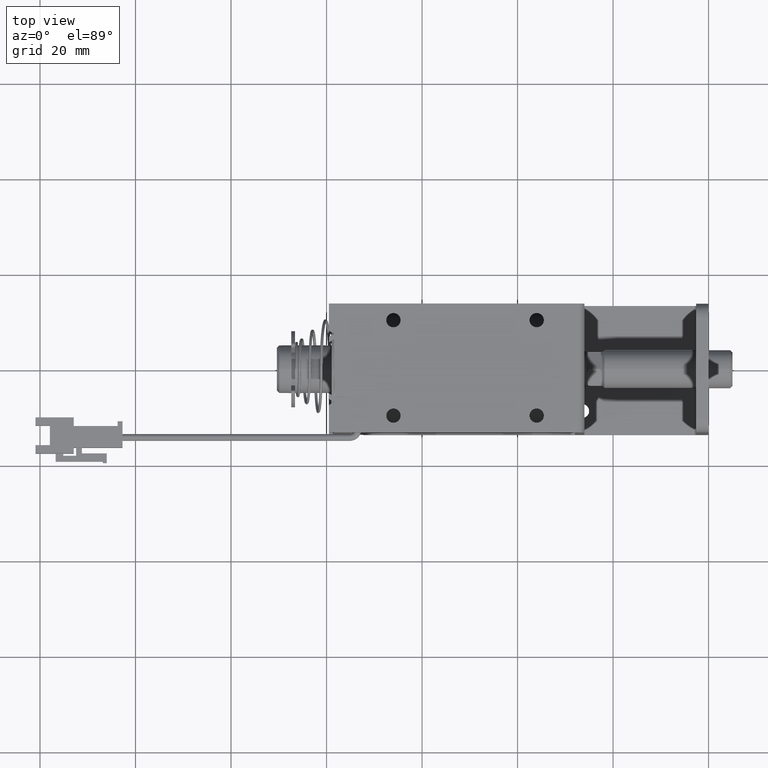
[diagram: clean part render]
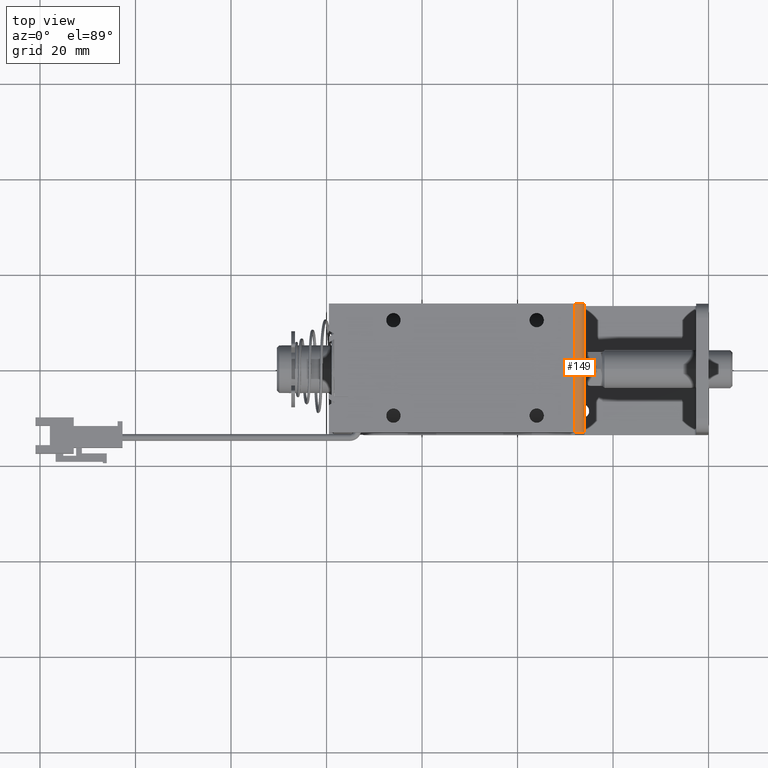
[diagram: same view with one face highlighted and labeled with its STEP entity id]
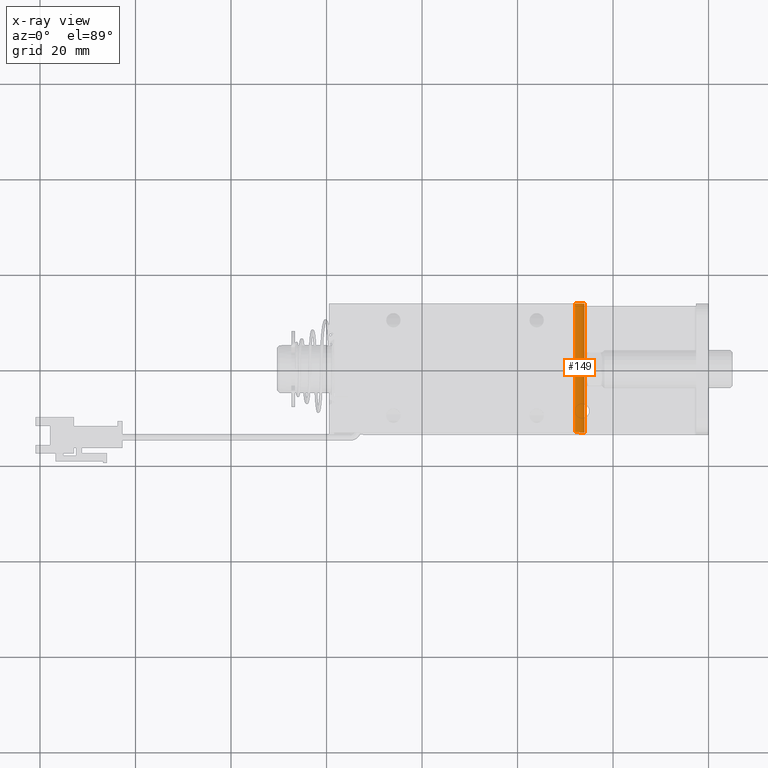
[diagram: x-ray of the same camera — body ghosted, the highlighted face saturated]
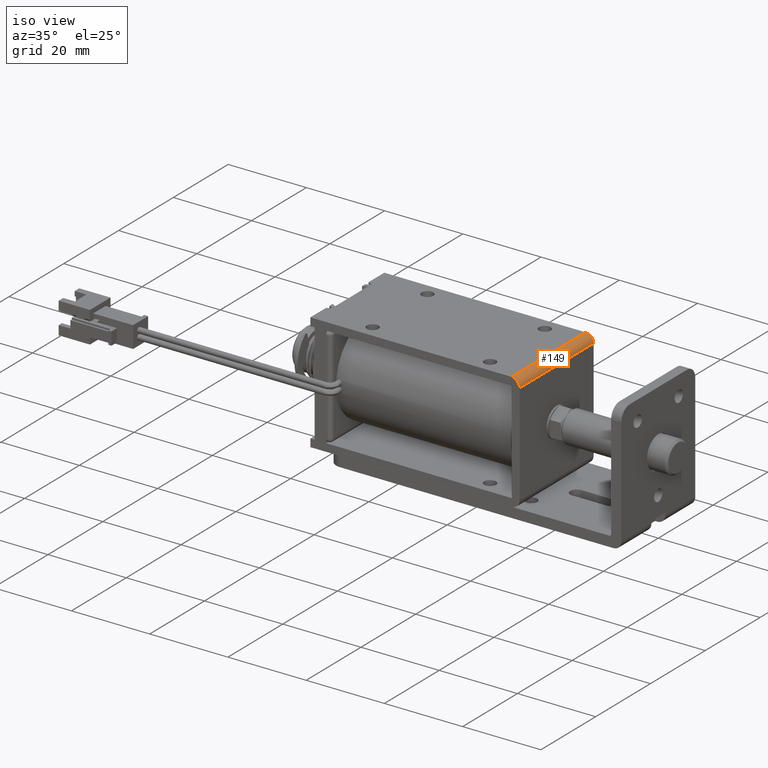
[diagram: same view with one face highlighted and labeled with its STEP entity id]
A machine part, top view. The second image highlights one B-rep face of the part: STEP entity #149.
The next image is the same camera in x-ray: the body ghosted, the highlighted face saturated — about 0% of this face is hidden behind the body in this view.
A second angle (iso view) of the same face is appended — the face is thin or edge-on in the first view.
In plain terms, the highlighted cylindrical surface (edge-blend (fillet) strip) has radius 2 mm, axis along (-0, 1, 0).
Its self-contained STEP definition (entity closure, byte-faithful):
#149=ADVANCED_FACE('',(#1512),#1511,.T.);
#1511=CYLINDRICAL_SURFACE('',#4473,2.00000000000E+000);
#1512=FACE_OUTER_BOUND('',#4474,.T.);
#4470=CARTESIAN_POINT('',(-2.80000000000E+001,9.86500000000E+002,1.30000000000E+001));
#4471=DIRECTION('',(-0.00000000000E+000,1.00000000000E+000,0.00000000000E+000));
#4472=DIRECTION('',(-0.00000000000E+000,-0.00000000000E+000,1.00000000000E+000));
#4473=AXIS2_PLACEMENT_3D('',#4470,#4471,#4472);
#4474=EDGE_LOOP('',(#7636,#7637,#7638,#7639));
#7636=ORIENTED_EDGE('',*,*,#9177,.F.);
#7637=ORIENTED_EDGE('',*,*,#8789,.F.);
#7638=ORIENTED_EDGE('',*,*,#9202,.T.);
#7639=ORIENTED_EDGE('',*,*,#9137,.T.);
#8789=EDGE_CURVE('',#9937,#9923,#9944,.T.);
#9137=EDGE_CURVE('',#12294,#12287,#12295,.T.);
#9177=EDGE_CURVE('',#9923,#12287,#12569,.T.);
#9202=EDGE_CURVE('',#9937,#12294,#12727,.T.);
#9923=VERTEX_POINT('',#15878);
#9937=VERTEX_POINT('',#15886);
#9944=LINE('',#15890,#15891);
#12287=VERTEX_POINT('',#17281);
#12294=VERTEX_POINT('',#17285);
#12295=LINE('',#17286,#17287);
#12569=CIRCLE('',#17460,2.00000000000E+000);
#12727=CIRCLE('',#17541,2.00000000000E+000);
#15878=CARTESIAN_POINT('',(-2.60000000000E+001,-1.35000000000E+001,1.30000000000E+001));
#15886=CARTESIAN_POINT('',(-2.60000000000E+001,1.35000000000E+001,1.30000000000E+001));
#15890=CARTESIAN_POINT('',(-2.60000000000E+001,1.35000000000E+001,1.30000000000E+001));
#15891=VECTOR('',#15892,2.70000000000E+001);
#15892=DIRECTION('',(0.00000000000E+000,-1.00000000000E+000,0.00000000000E+000));
#17281=CARTESIAN_POINT('',(-2.80000000000E+001,-1.35000000000E+001,1.50000000000E+001));
#17285=CARTESIAN_POINT('',(-2.80000000000E+001,1.35000000000E+001,1.50000000000E+001));
#17286=CARTESIAN_POINT('',(-2.80000000000E+001,1.35000000000E+001,1.50000000000E+001));
#17287=VECTOR('',#17288,2.70000000000E+001);
#17288=DIRECTION('',(0.00000000000E+000,-1.00000000000E+000,0.00000000000E+000));
#17457=CARTESIAN_POINT('',(-2.80000000000E+001,-1.35000000000E+001,1.30000000000E+001));
#17458=DIRECTION('',(0.00000000000E+000,-1.00000000000E+000,0.00000000000E+000));
#17459=DIRECTION('',(-0.00000000000E+000,-0.00000000000E+000,-1.00000000000E+000));
#17460=AXIS2_PLACEMENT_3D('',#17457,#17458,#17459);
#17538=CARTESIAN_POINT('',(-2.80000000000E+001,1.35000000000E+001,1.30000000000E+001));
#17539=DIRECTION('',(0.00000000000E+000,-1.00000000000E+000,0.00000000000E+000));
#17540=DIRECTION('',(-0.00000000000E+000,-0.00000000000E+000,-1.00000000000E+000));
#17541=AXIS2_PLACEMENT_3D('',#17538,#17539,#17540);